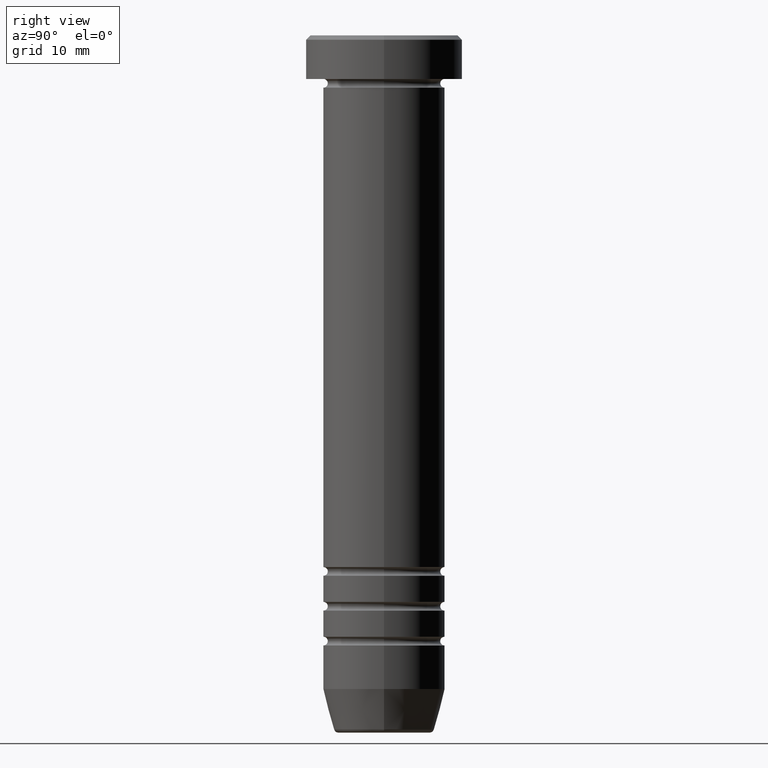
[diagram: clean part render]
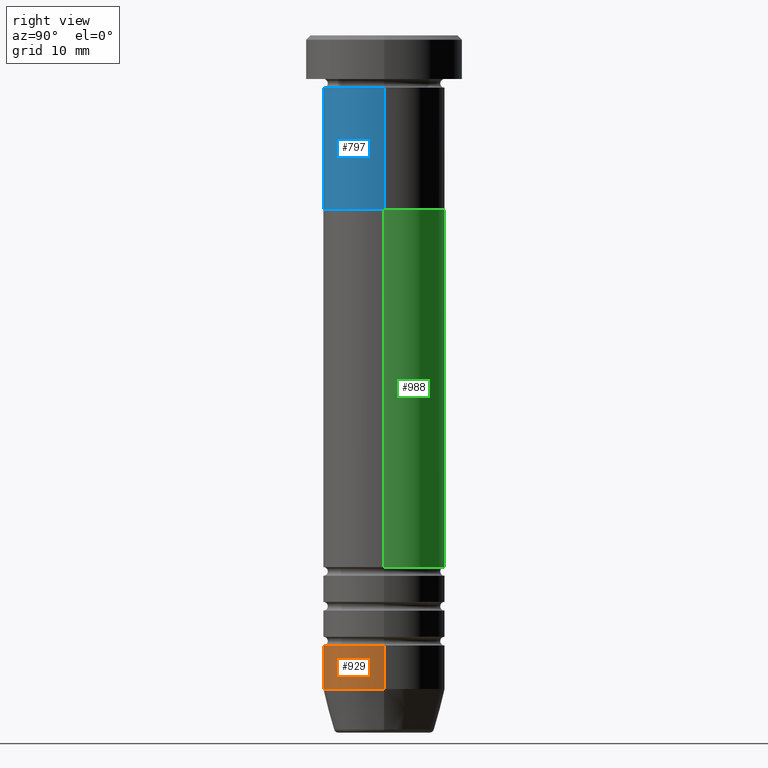
[diagram: same view with three faces highlighted in distinct colors, each labeled with its STEP entity id]
A machine part, right view with three faces highlighted in distinct colors.
Their STEP definitions:

[orange] entity #929 — the highlighted cylindrical surface (partial cylindrical patch) has radius 7 mm, axis along (-0, -0, 1).
#3 = DIRECTION ( 'NONE',  ( -0.000000000000000000, -0.000000000000000000, 1.000000000000000000 ) ) ;
#23 = EDGE_CURVE ( 'NONE', #676, #51, #155, .T. ) ;
#26 = FACE_OUTER_BOUND ( 'NONE', #77, .T. ) ;
#34 = ORIENTED_EDGE ( 'NONE', *, *, #623, .T. ) ;
#47 = CARTESIAN_POINT ( 'NONE',  ( -7.000000000000000000, 8.572527594031473190E-16, 0.000000000000000000 ) ) ;
#51 = VERTEX_POINT ( 'NONE', #661 ) ;
#68 = ORIENTED_EDGE ( 'NONE', *, *, #23, .F. ) ;
#77 = EDGE_LOOP ( 'NONE', ( #1055, #34, #636, #68 ) ) ;
#96 = AXIS2_PLACEMENT_3D ( 'NONE', #190, #835, #264 ) ;
#103 = DIRECTION ( 'NONE',  ( -0.000000000000000000, -0.000000000000000000, 1.000000000000000000 ) ) ;
#105 = DIRECTION ( 'NONE',  ( -0.000000000000000000, -0.000000000000000000, 1.000000000000000000 ) ) ;
#155 = CIRCLE ( 'NONE', #639, 7.000000000000000000 ) ;
#172 = CARTESIAN_POINT ( 'NONE',  ( 7.000000000000000000, 0.000000000000000000, -74.99999999999998579 ) ) ;
#175 = CARTESIAN_POINT ( 'NONE',  ( 0.000000000000000000, 0.000000000000000000, -74.99999999999998579 ) ) ;
#190 = CARTESIAN_POINT ( 'NONE',  ( 0.000000000000000000, 0.000000000000000000, 0.000000000000000000 ) ) ;
#243 = DIRECTION ( 'NONE',  ( 1.000000000000000000, 0.000000000000000000, 0.000000000000000000 ) ) ;
#244 = EDGE_CURVE ( 'NONE', #956, #676, #601, .T. ) ;
#263 = CARTESIAN_POINT ( 'NONE',  ( -7.000000000000000000, 8.572527594031473190E-16, -69.99999999999998579 ) ) ;
#264 = DIRECTION ( 'NONE',  ( 1.000000000000000000, 0.000000000000000000, 0.000000000000000000 ) ) ;
#333 = AXIS2_PLACEMENT_3D ( 'NONE', #175, #3, #243 ) ;
#361 = CYLINDRICAL_SURFACE ( 'NONE', #96, 7.000000000000000000 ) ;
#366 = CARTESIAN_POINT ( 'NONE',  ( -7.000000000000000000, 8.572527594031473190E-16, -74.99999999999998579 ) ) ;
#404 = CARTESIAN_POINT ( 'NONE',  ( 0.000000000000000000, 0.000000000000000000, -69.99999999999998579 ) ) ;
#407 = DIRECTION ( 'NONE',  ( -0.000000000000000000, -0.000000000000000000, 1.000000000000000000 ) ) ;
#427 = LINE ( 'NONE', #998, #642 ) ;
#448 = VERTEX_POINT ( 'NONE', #172 ) ;
#601 = LINE ( 'NONE', #47, #899 ) ;
#623 = EDGE_CURVE ( 'NONE', #956, #448, #968, .T. ) ;
#636 = ORIENTED_EDGE ( 'NONE', *, *, #865, .T. ) ;
#639 = AXIS2_PLACEMENT_3D ( 'NONE', #404, #407, #732 ) ;
#642 = VECTOR ( 'NONE', #105, 1000.000000000000000 ) ;
#661 = CARTESIAN_POINT ( 'NONE',  ( 7.000000000000000000, 0.000000000000000000, -69.99999999999998579 ) ) ;
#676 = VERTEX_POINT ( 'NONE', #263 ) ;
#732 = DIRECTION ( 'NONE',  ( 1.000000000000000000, 0.000000000000000000, 0.000000000000000000 ) ) ;
#835 = DIRECTION ( 'NONE',  ( -0.000000000000000000, -0.000000000000000000, 1.000000000000000000 ) ) ;
#865 = EDGE_CURVE ( 'NONE', #448, #51, #427, .T. ) ;
#899 = VECTOR ( 'NONE', #103, 1000.000000000000000 ) ;
#929 = ADVANCED_FACE ( 'NONE', ( #26 ), #361, .T. ) ;
#956 = VERTEX_POINT ( 'NONE', #366 ) ;
#968 = CIRCLE ( 'NONE', #333, 7.000000000000000000 ) ;
#998 = CARTESIAN_POINT ( 'NONE',  ( 7.000000000000000000, 0.000000000000000000, 0.000000000000000000 ) ) ;
#1055 = ORIENTED_EDGE ( 'NONE', *, *, #244, .F. ) ;

[blue] entity #797 — the highlighted cylindrical surface (partial cylindrical patch) has radius 7 mm, axis along (-0, -0, 1).
#4 = DIRECTION ( 'NONE',  ( 1.000000000000000000, 0.000000000000000000, 0.000000000000000000 ) ) ;
#54 = CARTESIAN_POINT ( 'NONE',  ( -7.000000000000000000, 8.572527594031473190E-16, -20.00000000000000000 ) ) ;
#100 = CARTESIAN_POINT ( 'NONE',  ( -7.000000000000000000, 8.572527594031473190E-16, 0.000000000000000000 ) ) ;
#108 = VERTEX_POINT ( 'NONE', #527 ) ;
#133 = CYLINDRICAL_SURFACE ( 'NONE', #744, 7.000000000000000000 ) ;
#183 = CIRCLE ( 'NONE', #621, 7.000000000000000000 ) ;
#221 = CARTESIAN_POINT ( 'NONE',  ( 7.000000000000000000, 0.000000000000000000, 0.000000000000000000 ) ) ;
#229 = CARTESIAN_POINT ( 'NONE',  ( 0.000000000000000000, 0.000000000000000000, 0.000000000000000000 ) ) ;
#321 = VERTEX_POINT ( 'NONE', #54 ) ;
#329 = DIRECTION ( 'NONE',  ( 1.000000000000000000, 0.000000000000000000, 0.000000000000000000 ) ) ;
#339 = EDGE_CURVE ( 'NONE', #1017, #108, #954, .T. ) ;
#356 = VECTOR ( 'NONE', #424, 1000.000000000000000 ) ;
#424 = DIRECTION ( 'NONE',  ( -0.000000000000000000, -0.000000000000000000, 1.000000000000000000 ) ) ;
#527 = CARTESIAN_POINT ( 'NONE',  ( 7.000000000000000000, 0.000000000000000000, -6.000000000000001776 ) ) ;
#540 = CARTESIAN_POINT ( 'NONE',  ( 0.000000000000000000, 0.000000000000000000, -6.000000000000001776 ) ) ;
#565 = EDGE_LOOP ( 'NONE', ( #726, #705, #854, #763 ) ) ;
#608 = CIRCLE ( 'NONE', #680, 7.000000000000000000 ) ;
#621 = AXIS2_PLACEMENT_3D ( 'NONE', #655, #748, #329 ) ;
#635 = EDGE_CURVE ( 'NONE', #321, #724, #667, .T. ) ;
#650 = EDGE_CURVE ( 'NONE', #321, #1017, #183, .T. ) ;
#655 = CARTESIAN_POINT ( 'NONE',  ( 0.000000000000000000, 0.000000000000000000, -20.00000000000000000 ) ) ;
#656 = FACE_OUTER_BOUND ( 'NONE', #565, .T. ) ;
#667 = LINE ( 'NONE', #100, #356 ) ;
#680 = AXIS2_PLACEMENT_3D ( 'NONE', #540, #871, #710 ) ;
#705 = ORIENTED_EDGE ( 'NONE', *, *, #650, .T. ) ;
#710 = DIRECTION ( 'NONE',  ( 1.000000000000000000, 0.000000000000000000, 0.000000000000000000 ) ) ;
#724 = VERTEX_POINT ( 'NONE', #799 ) ;
#726 = ORIENTED_EDGE ( 'NONE', *, *, #635, .F. ) ;
#744 = AXIS2_PLACEMENT_3D ( 'NONE', #229, #819, #4 ) ;
#748 = DIRECTION ( 'NONE',  ( -0.000000000000000000, -0.000000000000000000, 1.000000000000000000 ) ) ;
#763 = ORIENTED_EDGE ( 'NONE', *, *, #783, .F. ) ;
#770 = CARTESIAN_POINT ( 'NONE',  ( 7.000000000000000000, 0.000000000000000000, -20.00000000000000000 ) ) ;
#783 = EDGE_CURVE ( 'NONE', #724, #108, #608, .T. ) ;
#797 = ADVANCED_FACE ( 'NONE', ( #656 ), #133, .T. ) ;
#799 = CARTESIAN_POINT ( 'NONE',  ( -7.000000000000000000, 8.572527594031473190E-16, -6.000000000000001776 ) ) ;
#819 = DIRECTION ( 'NONE',  ( -0.000000000000000000, -0.000000000000000000, 1.000000000000000000 ) ) ;
#854 = ORIENTED_EDGE ( 'NONE', *, *, #339, .T. ) ;
#871 = DIRECTION ( 'NONE',  ( -0.000000000000000000, -0.000000000000000000, 1.000000000000000000 ) ) ;
#878 = DIRECTION ( 'NONE',  ( -0.000000000000000000, -0.000000000000000000, 1.000000000000000000 ) ) ;
#954 = LINE ( 'NONE', #221, #1036 ) ;
#1017 = VERTEX_POINT ( 'NONE', #770 ) ;
#1036 = VECTOR ( 'NONE', #878, 1000.000000000000000 ) ;

[green] entity #988 — the highlighted cylindrical surface (partial cylindrical patch) has radius 7 mm, axis along (-0, -0, 1).
#1 = CARTESIAN_POINT ( 'NONE',  ( 0.000000000000000000, 0.000000000000000000, -60.99999999999999289 ) ) ;
#13 = VECTOR ( 'NONE', #689, 1000.000000000000000 ) ;
#30 = AXIS2_PLACEMENT_3D ( 'NONE', #599, #101, #754 ) ;
#31 = DIRECTION ( 'NONE',  ( -0.000000000000000000, -0.000000000000000000, 1.000000000000000000 ) ) ;
#33 = DIRECTION ( 'NONE',  ( 1.000000000000000000, 0.000000000000000000, 0.000000000000000000 ) ) ;
#58 = VECTOR ( 'NONE', #31, 1000.000000000000000 ) ;
#101 = DIRECTION ( 'NONE',  ( -0.000000000000000000, -0.000000000000000000, 1.000000000000000000 ) ) ;
#106 = EDGE_CURVE ( 'NONE', #153, #316, #752, .T. ) ;
#153 = VERTEX_POINT ( 'NONE', #441 ) ;
#160 = AXIS2_PLACEMENT_3D ( 'NONE', #502, #855, #33 ) ;
#187 = DIRECTION ( 'NONE',  ( -0.000000000000000000, -0.000000000000000000, 1.000000000000000000 ) ) ;
#195 = CARTESIAN_POINT ( 'NONE',  ( -6.999999999999996447, 8.572527594031468259E-16, 0.000000000000000000 ) ) ;
#205 = ORIENTED_EDGE ( 'NONE', *, *, #955, .F. ) ;
#219 = ORIENTED_EDGE ( 'NONE', *, *, #894, .F. ) ;
#316 = VERTEX_POINT ( 'NONE', #1048 ) ;
#386 = AXIS2_PLACEMENT_3D ( 'NONE', #1, #187, #669 ) ;
#391 = VERTEX_POINT ( 'NONE', #802 ) ;
#399 = ORIENTED_EDGE ( 'NONE', *, *, #547, .T. ) ;
#413 = CARTESIAN_POINT ( 'NONE',  ( 7.000000000000000000, 0.000000000000000000, -20.00000000000000000 ) ) ;
#441 = CARTESIAN_POINT ( 'NONE',  ( -6.999999999999992895, 8.572527594031466287E-16, -60.99999999999999289 ) ) ;
#502 = CARTESIAN_POINT ( 'NONE',  ( 0.000000000000000000, 0.000000000000000000, 0.000000000000000000 ) ) ;
#514 = LINE ( 'NONE', #594, #13 ) ;
#547 = EDGE_CURVE ( 'NONE', #391, #153, #554, .T. ) ;
#554 = CIRCLE ( 'NONE', #386, 6.999999999999992895 ) ;
#590 = ORIENTED_EDGE ( 'NONE', *, *, #106, .T. ) ;
#594 = CARTESIAN_POINT ( 'NONE',  ( 6.999999999999996447, 0.000000000000000000, 0.000000000000000000 ) ) ;
#599 = CARTESIAN_POINT ( 'NONE',  ( 0.000000000000000000, 0.000000000000000000, -20.00000000000000000 ) ) ;
#669 = DIRECTION ( 'NONE',  ( 1.000000000000000000, 0.000000000000000000, 0.000000000000000000 ) ) ;
#675 = FACE_OUTER_BOUND ( 'NONE', #938, .T. ) ;
#689 = DIRECTION ( 'NONE',  ( -0.000000000000000000, -0.000000000000000000, 1.000000000000000000 ) ) ;
#707 = VERTEX_POINT ( 'NONE', #413 ) ;
#752 = LINE ( 'NONE', #195, #58 ) ;
#754 = DIRECTION ( 'NONE',  ( 1.000000000000000000, 0.000000000000000000, 0.000000000000000000 ) ) ;
#764 = CYLINDRICAL_SURFACE ( 'NONE', #160, 6.999999999999996447 ) ;
#802 = CARTESIAN_POINT ( 'NONE',  ( 6.999999999999992895, 0.000000000000000000, -60.99999999999999289 ) ) ;
#832 = CIRCLE ( 'NONE', #30, 7.000000000000000000 ) ;
#855 = DIRECTION ( 'NONE',  ( -0.000000000000000000, -0.000000000000000000, 1.000000000000000000 ) ) ;
#894 = EDGE_CURVE ( 'NONE', #391, #707, #514, .T. ) ;
#938 = EDGE_LOOP ( 'NONE', ( #399, #590, #205, #219 ) ) ;
#955 = EDGE_CURVE ( 'NONE', #707, #316, #832, .T. ) ;
#988 = ADVANCED_FACE ( 'NONE', ( #675 ), #764, .T. ) ;
#1048 = CARTESIAN_POINT ( 'NONE',  ( -7.000000000000000000, 8.572527594031472204E-16, -20.00000000000000000 ) ) ;